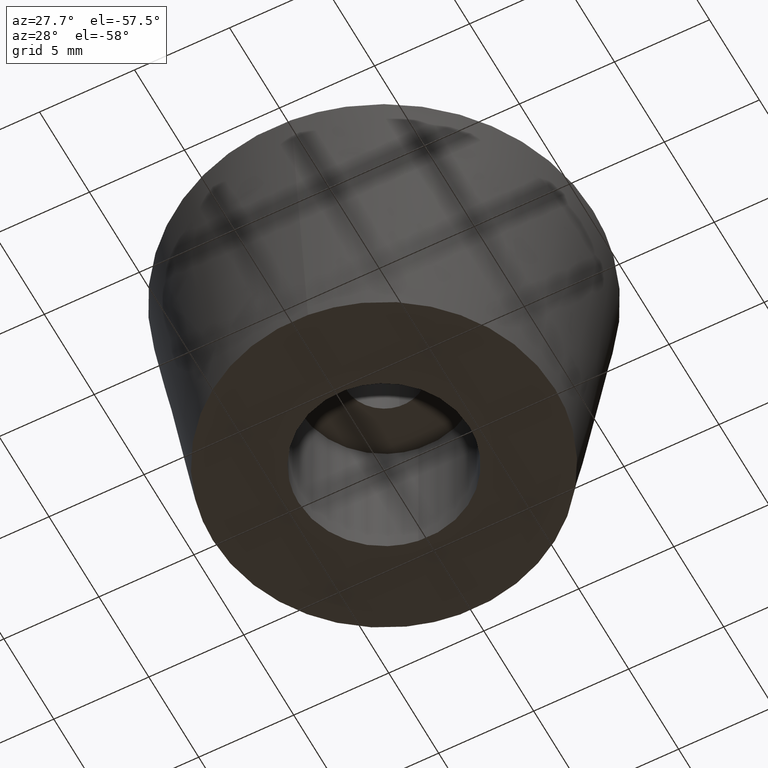
[diagram: clean part render]
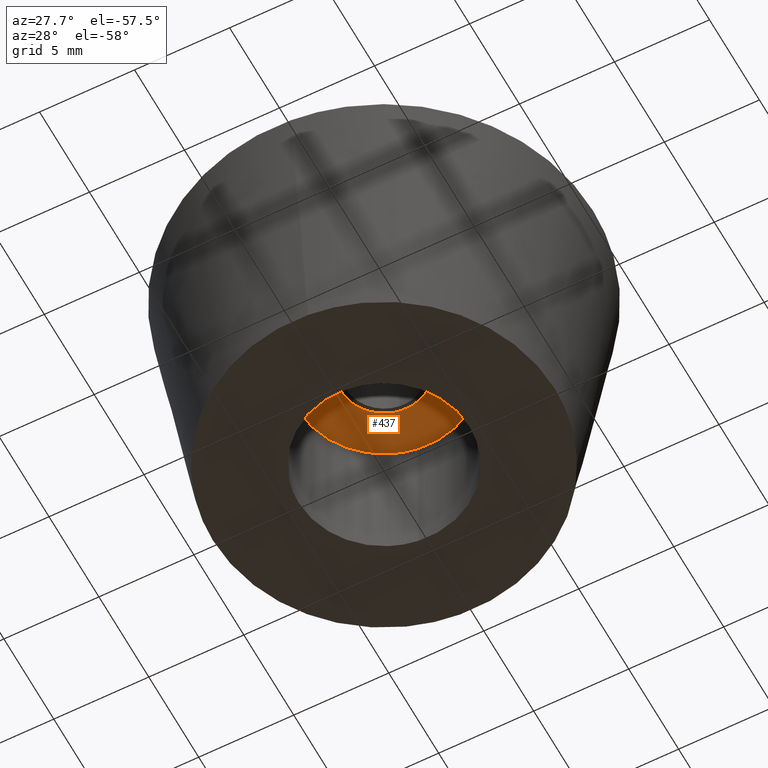
[diagram: same view with one face highlighted and labeled with its STEP entity id]
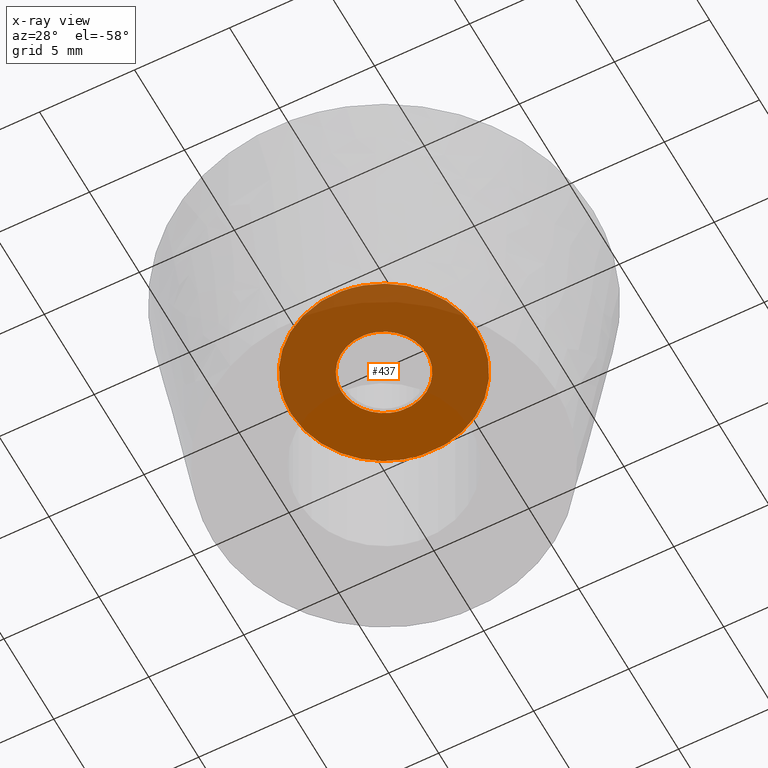
[diagram: x-ray of the same camera — body ghosted, the highlighted face saturated]
A machine part, auxiliary view. The second image highlights one B-rep face of the part: STEP entity #437.
The next image is the same camera in x-ray: the body ghosted, the highlighted face saturated — about 68% of this face is hidden behind the body in this view.
In plain terms, the highlighted face is a freeform B-spline surface patch.
Its self-contained STEP definition (entity closure, byte-faithful):
#66=CARTESIAN_POINT('',(-0.265577027999116,2.234271434315704,7.999999999999839));
#67=VERTEX_POINT('',#66);
#68=CARTESIAN_POINT('',(2.250000000000000,0.0,7.999999999999839));
#69=VERTEX_POINT('',#68);
#70=CARTESIAN_POINT('',(-0.265577027999116,2.234271434315704,7.999999999999839));
#71=CARTESIAN_POINT('',(-0.133254269238433,2.250000000000000,7.999999999999839));
#72=CARTESIAN_POINT('',(0.0,2.250000000000000,7.999999999999839));
#73=CARTESIAN_POINT('',(2.250000000000000,2.250000000000000,7.999999999999839));
#74=CARTESIAN_POINT('',(2.250000000000000,0.0,7.999999999999839));
#82=(BOUNDED_CURVE()B_SPLINE_CURVE(2,(#70,#71,#72,#73,#74),.UNSPECIFIED.,.F.,.U.)B_SPLINE_CURVE_WITH_KNOTS((3,2,3),(0.229562473512405,0.250000000000000,0.500000000000000),.UNSPECIFIED.)CURVE()GEOMETRIC_REPRESENTATION_ITEM()RATIONAL_B_SPLINE_CURVE((0.956026754181537,0.976055948329853,1.0,0.707106781186547,1.0))REPRESENTATION_ITEM(''));
#83=EDGE_CURVE('',#67,#69,#82,.T.);
#85=CARTESIAN_POINT('',(0.137357884028287,-2.245803377790116,7.999999999999871));
#86=VERTEX_POINT('',#85);
#87=CARTESIAN_POINT('',(2.250000000000000,0.0,7.999999999999839));
#88=CARTESIAN_POINT('',(2.249999999999999,-2.116589906286848,7.999999999999838));
#89=CARTESIAN_POINT('',(0.137357884028287,-2.245803377790116,7.999999999999871));
#97=(BOUNDED_CURVE()B_SPLINE_CURVE(2,(#87,#88,#89),.UNSPECIFIED.,.F.,.U.)B_SPLINE_CURVE_WITH_KNOTS((3,3),(0.500000000000000,0.739333064421145),.UNSPECIFIED.)CURVE()GEOMETRIC_REPRESENTATION_ITEM()RATIONAL_B_SPLINE_CURVE((1.0,0.719603873572814,0.976072260662725))REPRESENTATION_ITEM(''));
#98=EDGE_CURVE('',#69,#86,#97,.T.);
#165=CARTESIAN_POINT('',(-2.250000000000000,0.0,7.999999999999839));
#166=VERTEX_POINT('',#165);
#167=CARTESIAN_POINT('',(-2.250000000000000,0.0,7.999999999999839));
#168=CARTESIAN_POINT('',(-2.250000000000001,1.998392683352009,7.999999999999839));
#169=CARTESIAN_POINT('',(-0.265577027999116,2.234271434315704,7.999999999999840));
#177=(BOUNDED_CURVE()B_SPLINE_CURVE(2,(#167,#168,#169),.UNSPECIFIED.,.F.,.U.)B_SPLINE_CURVE_WITH_KNOTS((3,3),(0.0,0.229562473512405),.UNSPECIFIED.)CURVE()GEOMETRIC_REPRESENTATION_ITEM()RATIONAL_B_SPLINE_CURVE((1.0,0.731050832856695,0.956026754181537))REPRESENTATION_ITEM(''));
#178=EDGE_CURVE('',#166,#67,#177,.T.);
#212=CARTESIAN_POINT('',(0.137357884028287,-2.245803377790116,7.999999999999871));
#213=CARTESIAN_POINT('',(0.068743050594794,-2.250000000000000,7.999999999999840));
#214=CARTESIAN_POINT('',(0.0,-2.250000000000000,7.999999999999839));
#215=CARTESIAN_POINT('',(-2.250000000000000,-2.250000000000000,7.999999999999839));
#216=CARTESIAN_POINT('',(-2.250000000000000,0.0,7.999999999999839));
#224=(BOUNDED_CURVE()B_SPLINE_CURVE(2,(#212,#213,#214,#215,#216),.UNSPECIFIED.,.F.,.U.)B_SPLINE_CURVE_WITH_KNOTS((3,2,3),(0.739333064421145,0.750000000000000,1.0),.UNSPECIFIED.)CURVE()GEOMETRIC_REPRESENTATION_ITEM()RATIONAL_B_SPLINE_CURVE((0.976072260662725,0.987502907613733,1.0,0.707106781186547,1.0))REPRESENTATION_ITEM(''));
#225=EDGE_CURVE('',#86,#166,#224,.T.);
#256=CARTESIAN_POINT('',(-0.578361962546024,4.865747367079998,8.000000000000085));
#257=VERTEX_POINT('',#256);
#258=CARTESIAN_POINT('',(4.900000000000000,0.0,7.999999999999839));
#259=VERTEX_POINT('',#258);
#260=CARTESIAN_POINT('',(-0.578361962546024,4.865747367079998,8.000000000000085));
#261=CARTESIAN_POINT('',(-0.290195262067679,4.900000000000000,7.999999999999840));
#262=CARTESIAN_POINT('',(0.0,4.900000000000000,7.999999999999839));
#263=CARTESIAN_POINT('',(4.899999999999999,4.899999999999999,7.999999999999839));
#264=CARTESIAN_POINT('',(4.900000000000000,0.0,7.999999999999839));
#272=(BOUNDED_CURVE()B_SPLINE_CURVE(2,(#260,#261,#262,#263,#264),.UNSPECIFIED.,.F.,.U.)B_SPLINE_CURVE_WITH_KNOTS((3,2,3),(0.229562674526490,0.250000000000000,0.500000000000000),.UNSPECIFIED.)CURVE()GEOMETRIC_REPRESENTATION_ITEM()RATIONAL_B_SPLINE_CURVE((0.956027148177749,0.976056183832502,1.0,0.707106781186547,1.0))REPRESENTATION_ITEM(''));
#273=EDGE_CURVE('',#257,#259,#272,.T.);
#314=CARTESIAN_POINT('',(0.299129867093812,-4.890861000125495,7.999999999999943));
#315=VERTEX_POINT('',#314);
#321=CARTESIAN_POINT('',(4.900000000000000,0.0,7.999999999999839));
#322=CARTESIAN_POINT('',(4.899999999999998,-4.609467259574525,7.999999999999838));
#323=CARTESIAN_POINT('',(0.299129867093812,-4.890861000125496,7.999999999999943));
#331=(BOUNDED_CURVE()B_SPLINE_CURVE(2,(#321,#322,#323),.UNSPECIFIED.,.F.,.U.)B_SPLINE_CURVE_WITH_KNOTS((3,3),(0.500000000000000,0.739333243652911),.UNSPECIFIED.)CURVE()GEOMETRIC_REPRESENTATION_ITEM()RATIONAL_B_SPLINE_CURVE((1.0,0.719603663589738,0.976072644791163))REPRESENTATION_ITEM(''));
#332=EDGE_CURVE('',#259,#315,#331,.T.);
#355=CARTESIAN_POINT('',(-4.900000000000000,0.0,7.999999999999839));
#356=VERTEX_POINT('',#355);
#357=CARTESIAN_POINT('',(-4.900000000000000,0.0,7.999999999999839));
#358=CARTESIAN_POINT('',(-4.900000000000000,4.352060389895565,7.999999999999839));
#359=CARTESIAN_POINT('',(-0.578361962546024,4.865747367079998,8.000000000000085));
#367=(BOUNDED_CURVE()B_SPLINE_CURVE(2,(#357,#358,#359),.UNSPECIFIED.,.F.,.U.)B_SPLINE_CURVE_WITH_KNOTS((3,3),(0.0,0.229562674526490),.UNSPECIFIED.)CURVE()GEOMETRIC_REPRESENTATION_ITEM()RATIONAL_B_SPLINE_CURVE((1.0,0.731050597354045,0.956027148177749))REPRESENTATION_ITEM(''));
#368=EDGE_CURVE('',#356,#257,#367,.T.);
#370=CARTESIAN_POINT('',(0.299129867093812,-4.890861000125496,7.999999999999943));
#371=CARTESIAN_POINT('',(0.149704540667247,-4.900000000000001,7.999999999999840));
#372=CARTESIAN_POINT('',(0.0,-4.900000000000000,7.999999999999839));
#373=CARTESIAN_POINT('',(-4.899999999999999,-4.899999999999999,7.999999999999839));
#374=CARTESIAN_POINT('',(-4.900000000000000,0.0,7.999999999999839));
#382=(BOUNDED_CURVE()B_SPLINE_CURVE(2,(#370,#371,#372,#373,#374),.UNSPECIFIED.,.F.,.U.)B_SPLINE_CURVE_WITH_KNOTS((3,2,3),(0.739333243652911,0.750000000000000,1.0),.UNSPECIFIED.)CURVE()GEOMETRIC_REPRESENTATION_ITEM()RATIONAL_B_SPLINE_CURVE((0.976072644791163,0.987503117596809,1.0,0.707106781186547,1.0))REPRESENTATION_ITEM(''));
#383=EDGE_CURVE('',#315,#356,#382,.T.);
#420=CARTESIAN_POINT('',(-5.389510073001086,-5.389390995347219,7.999999999999839));
#421=CARTESIAN_POINT('',(5.389510248238743,-5.389390995347219,7.999999999999839));
#422=CARTESIAN_POINT('',(-5.389510073001086,5.389420873367506,7.999999999999839));
#423=CARTESIAN_POINT('',(5.389510248238743,5.389420873367506,7.999999999999839));
#424=B_SPLINE_SURFACE_WITH_KNOTS('',1,1,((#420,#422),(#421,#423)),.UNSPECIFIED.,.F.,.F.,.U.,(2,2),(2,2),(0.0,10.779020321239830),(0.0,10.778811868714730),.UNSPECIFIED.);
#425=ORIENTED_EDGE('',*,*,#368,.T.);
#426=ORIENTED_EDGE('',*,*,#273,.T.);
#427=ORIENTED_EDGE('',*,*,#332,.T.);
#428=ORIENTED_EDGE('',*,*,#383,.T.);
#429=EDGE_LOOP('',(#425,#426,#427,#428));
#430=FACE_OUTER_BOUND('',#429,.T.);
#431=ORIENTED_EDGE('',*,*,#98,.F.);
#432=ORIENTED_EDGE('',*,*,#83,.F.);
#433=ORIENTED_EDGE('',*,*,#178,.F.);
#434=ORIENTED_EDGE('',*,*,#225,.F.);
#435=EDGE_LOOP('',(#431,#432,#433,#434));
#436=FACE_BOUND('',#435,.T.);
#437=ADVANCED_FACE('',(#430,#436),#424,.F.);